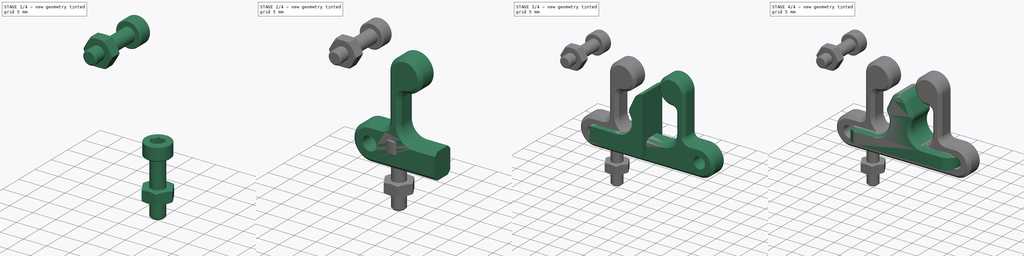
[diagram: build sequence overview — one tinted view per stage of 4, left to right]
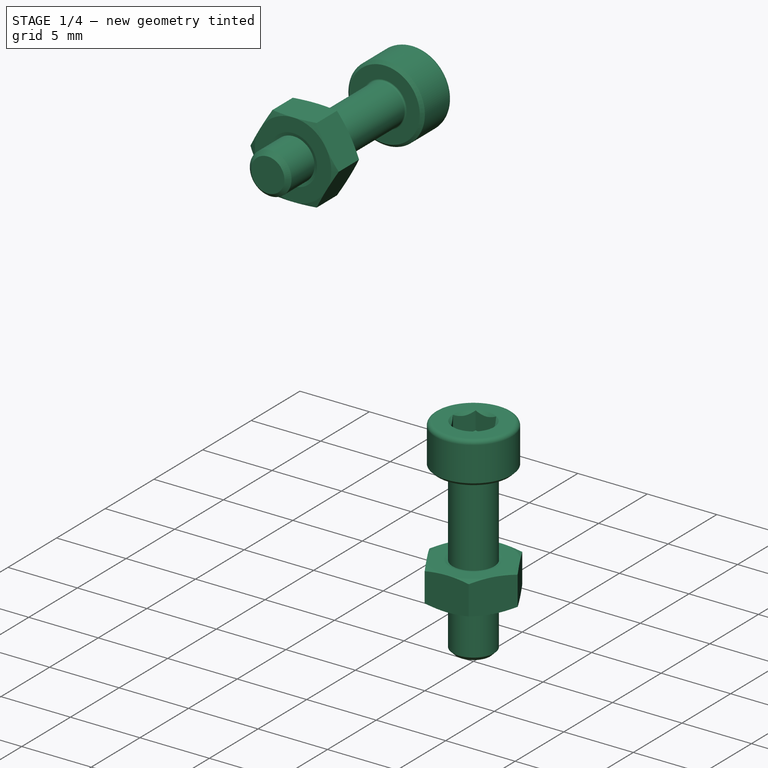
[diagram: stage 1 of 4 — iso view after this stage's code; geometry added in this stage tinted green]
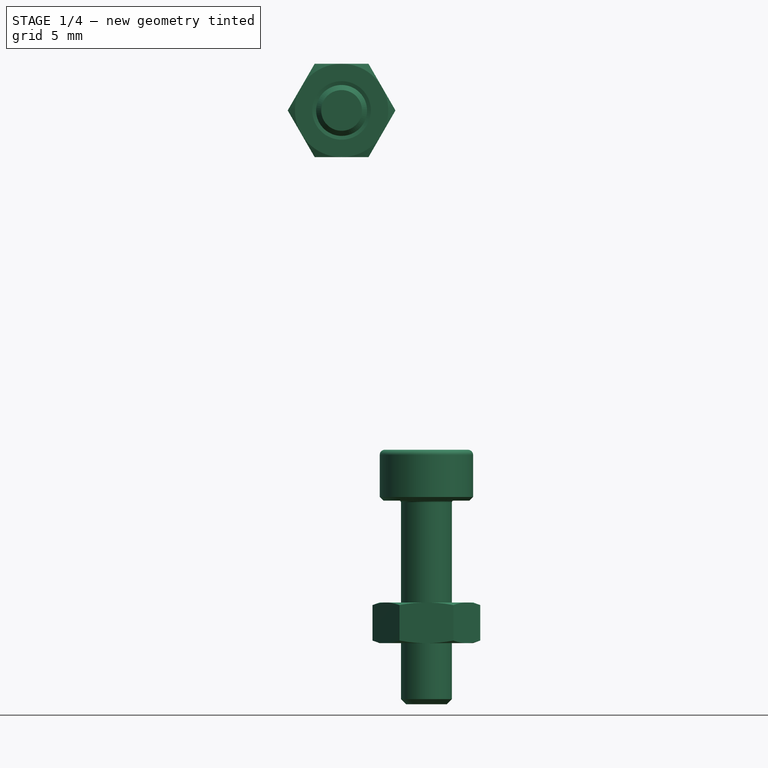
[diagram: stage 1 of 4 — front view after this stage's code; geometry added in this stage tinted green]
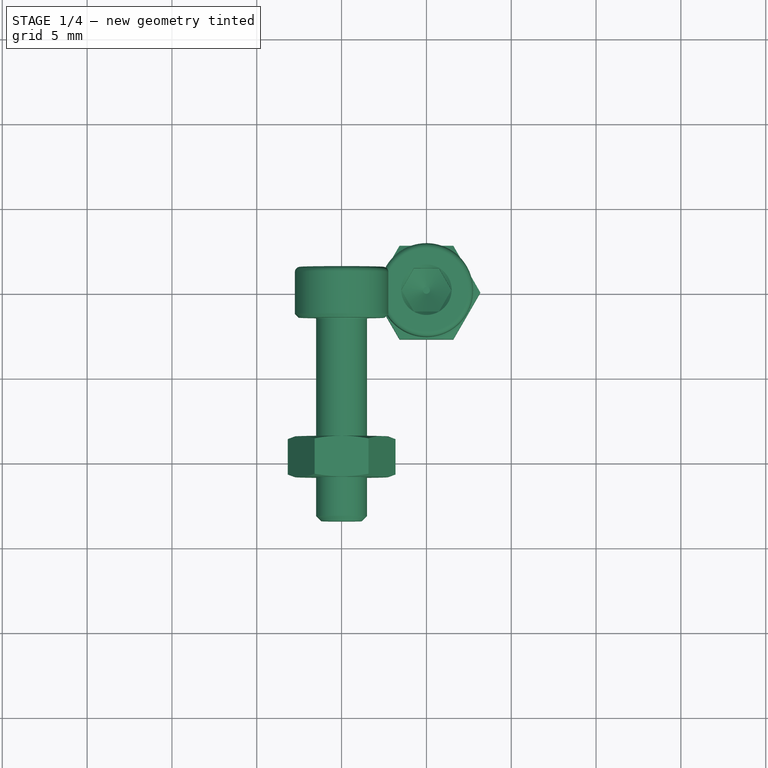
[diagram: stage 1 of 4 — top view after this stage's code; geometry added in this stage tinted green]
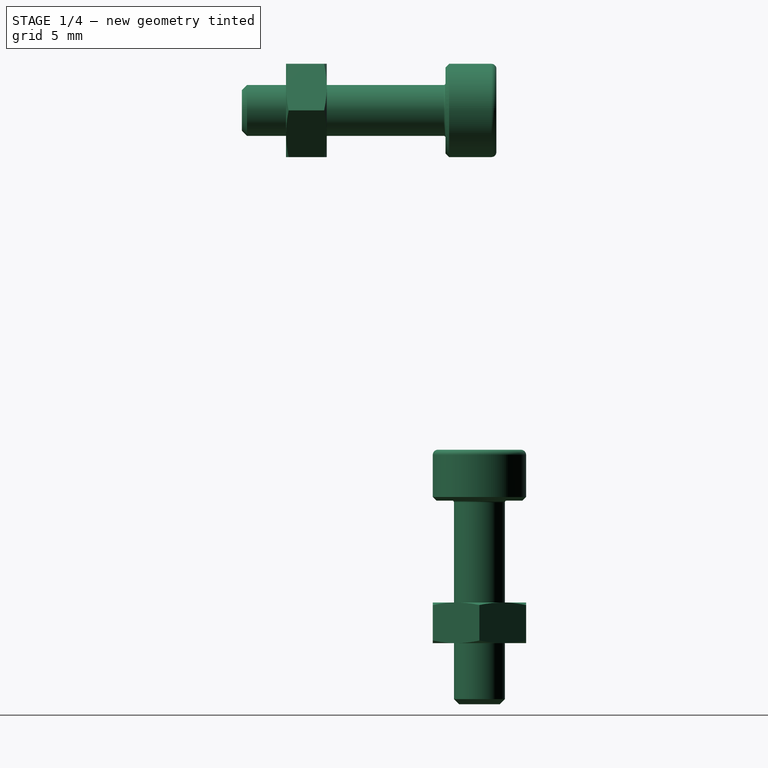
[diagram: stage 1 of 4 — right view after this stage's code; geometry added in this stage tinted green]
FCSTD DOCUMENT  (FreeCAD 0.20R29410 (Git))
Label: Latch
License: All rights reserved
LicenseURL: http://en.wikipedia.org/wiki/All_rights_reserved
objects: Sketcher::SketchObject×5, Part::FeaturePython×4, App::Link×4, PartDesign::Pocket×3, PartDesign::Pad×2, PartDesign::Chamfer×2, PartDesign::Mirrored×2, PartDesign::Body×2, PartDesign::Fillet×1, App::Part×1
note: 29 computed .brp shape members not serialized (recipe doc carries the construction recipe); baked Part::Feature solids carry a one-line shape summary decoded from their .brp

FEATURE [PartDesign::Body] Body001  label="Flex"
  Group = -> [Sketch001,Pad001,Sketch002,Pocket,Chamfer001,Mirrored001]
  Origin = -> Origin002
  Placement = pos=(0,-1.5,22) rot=(0,1,0;3.14159rad)
  Tip = -> Mirrored001
FEATURE [Part::FeaturePython] Screw  label="M3x12-Screw"  # Fasteners workbench fastener (typed FeaturePython)
  Placement = pos=(-10,0,-1) rot=(0,0,1;0rad)
  diameter = 4
  invert = true
  leftHanded = false
  length = 4
  lengthCustom = 12
  matchOuter = false
  offset = 0
  thread = false
  type = 42
FEATURE [App::Link] Link  label="M3x12-Screw001"
  LinkPlacement = pos=(10,0,-1) rot=(0,0,1;0rad)
  LinkedObject = -> Screw
  Placement = pos=(10,0,-1) rot=(0,0,1;0rad)
FEATURE [Part::FeaturePython] Screw001  label="M3x12-Screw002"  # Fasteners workbench fastener (typed FeaturePython)
  Placement = pos=(-15,-2,22) rot=(0,0.707107,0.707107;3.14159rad)
  diameter = 4
  invert = false
  leftHanded = false
  length = 4
  lengthCustom = 12
  matchOuter = false
  offset = 0
  thread = false
  type = 42
FEATURE [App::Link] Link001  label="M3x12-Screw003"
  LinkPlacement = pos=(15,-2,22) rot=(-1,0,0;1.5708rad)
  LinkedObject = -> Screw001
  Placement = pos=(15,-2,22) rot=(-1,0,0;1.5708rad)
FEATURE [Part::FeaturePython] Nut  label="M3-Nut"  # Fasteners workbench fastener (typed FeaturePython)
  Placement = pos=(-10,0,-7) rot=(0,1,0;3.14159rad)
  diameter = 4
  invert = false
  leftHanded = false
  matchOuter = false
  offset = 0
  thread = false
  type = 10
FEATURE [Part::FeaturePython] Nut001  label="M3-Nut004"  # Fasteners workbench fastener (typed FeaturePython)
  Placement = pos=(-15,-9,22) rot=(1,0,0;1.5708rad)
  diameter = 4
  invert = false
  leftHanded = false
  matchOuter = false
  offset = 0
  thread = false
  type = 10
FEATURE [App::Link] Link002  label="M3-Nut002"
  LinkPlacement = pos=(10,3.57628e-07,-7) rot=(0,1,0;3.14159rad)
  LinkedObject = -> Nut
  Placement = pos=(10,3.57628e-07,-7) rot=(0,1,0;3.14159rad)
FEATURE [App::Link] Link003  label="M3-Nut003"
  LinkPlacement = pos=(15,-9.00001,22) rot=(1,0,0;1.5708rad)
  LinkedObject = -> Nut001
  Placement = pos=(15,-9.00001,22) rot=(1,0,0;1.5708rad)
FEATURE [App::Part] Part  label="Latch"
  Group = -> [Body,Body001,Screw,Link,Screw001,Link001,Nut,Nut001,Link002,Link003]
  Origin = -> Origin
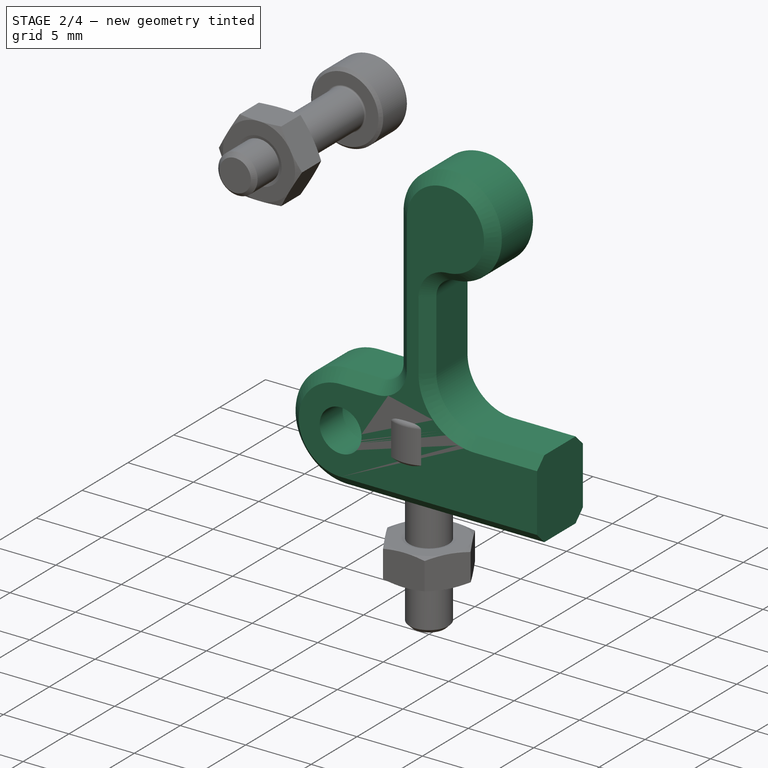
[diagram: stage 2 of 4 — iso view after this stage's code; geometry added in this stage tinted green]
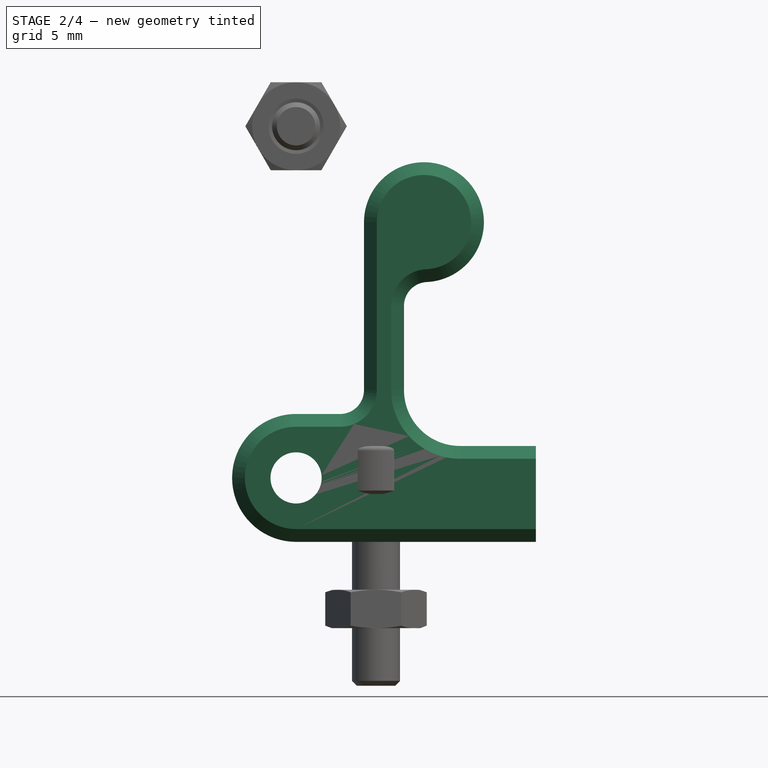
[diagram: stage 2 of 4 — front view after this stage's code; geometry added in this stage tinted green]
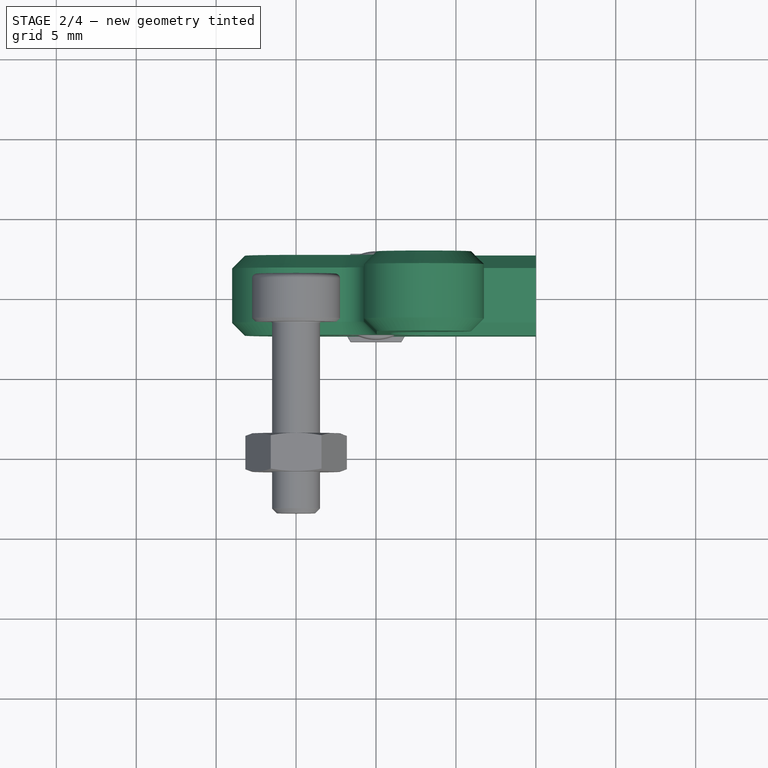
[diagram: stage 2 of 4 — top view after this stage's code; geometry added in this stage tinted green]
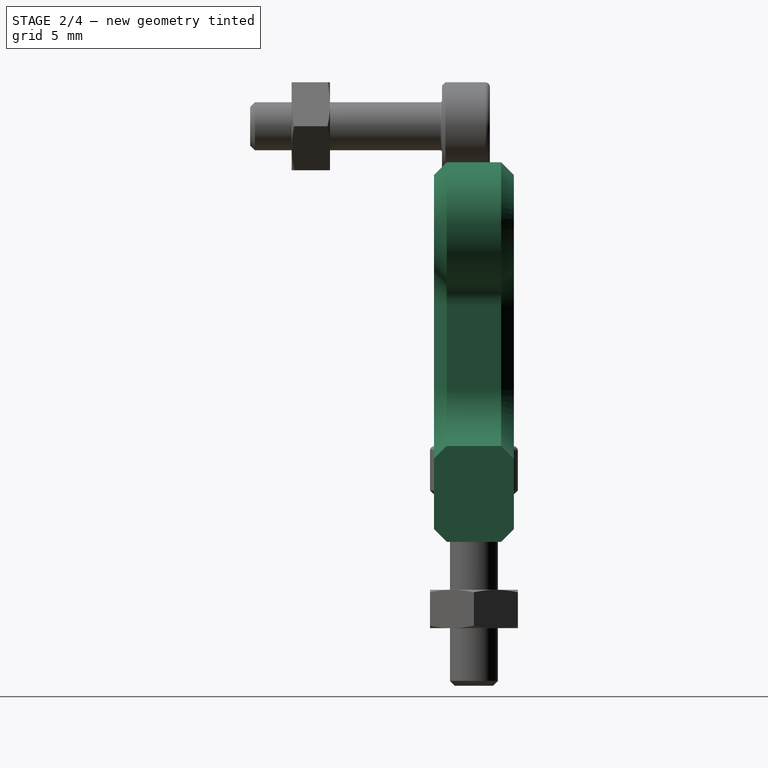
[diagram: stage 2 of 4 — right view after this stage's code; geometry added in this stage tinted green]
FEATURE [Sketcher::SketchObject] Sketch001
  FullyConstrained = true
  MapMode = 5
  Placement = pos=(0,0,0) rot=(1,0,0;1.5708rad)
  Support = -> [XZ_Plane002]
  sketch-geometry (12):
    g0: LineSegment StartX=-12.25 StartY=4 StartZ=0 EndX=-15 EndY=4 EndZ=0
    g1: LineSegment StartX=0 StartY=-4 StartZ=0 EndX=-15 EndY=-4 EndZ=0
    g2: ArcOfCircle CenterX=-15 CenterY=0 CenterZ=0 NormalX=0 NormalY=0 NormalZ=1 AngleXU=0 Radius=4 StartAngle=1.5708 EndAngle=4.71239
    g3: Circle CenterX=-15 CenterY=0 CenterZ=0 NormalX=0 NormalY=0 NormalZ=1 AngleXU=0 Radius=1.6
    g4: ArcOfCircle CenterX=-12.25 CenterY=5.5 CenterZ=0 NormalX=0 NormalY=0 NormalZ=1 AngleXU=0 Radius=1.5 StartAngle=4.71239 EndAngle=6.28319
    g5: ArcOfCircle CenterX=-7 CenterY=16 CenterZ=0 NormalX=0 NormalY=0 NormalZ=1 AngleXU=0 Radius=3.75 StartAngle=4.76003 EndAngle=9.42478
    g6: LineSegment StartX=-10.75 StartY=5.5 StartZ=0 EndX=-10.75 EndY=16 EndZ=0
    g7: LineSegment StartX=-8.25 StartY=10.756 StartZ=0 EndX=-8.25 EndY=5.5 EndZ=0
    g8: LineSegment StartX=0 StartY=2 StartZ=0 EndX=0 EndY=-4 EndZ=0
    g9: ArcOfCircle CenterX=-4.75 CenterY=5.5 CenterZ=0 NormalX=0 NormalY=0 NormalZ=1 AngleXU=0 Radius=3.5 StartAngle=3.14159 EndAngle=4.71239
    g10: LineSegment StartX=-4.75 StartY=2 StartZ=0 EndX=0 EndY=2 EndZ=0
    g11: ArcOfCircle CenterX=-6.75 CenterY=10.756 CenterZ=0 NormalX=0 NormalY=0 NormalZ=1 AngleXU=0 Radius=1.5 StartAngle=1.61843 EndAngle=3.14159
  constraints (31):
    c: Horizontal(g0)
    c: Horizontal(g1)
    c: PointOnObject(g2,g-1)
    c: Tangent(g2,g1) = 1.5708
    c: Tangent(g2,g0) = -1.5708
    c: PointOnObject(g1,g-2)
    c: Coincident(g3,g2)
    c: Diameter(g3) = 3.2
    c: Diameter(g2) = 8
    c: PointOnObject(g8,g-2)
    c: Coincident(g8,g1)
    c: Tangent(g6,g4) = -1.5708
    c: Tangent(g6,g5) = 1.5708
    c: Tangent(g4,g0) = 1.5708
    c: Coincident(g10,g8)
    c: Tangent(g10,g9) = -1.5708
    c: Horizontal(g7,g4)
    c: Vertical(g6)
    c: Diameter(g5) = 7.5
    c: Vertical(g7)
    c: Tangent(g9,g7) = -1.5708
    c: DistanceX(g2,g-1) = 15
    c: DistanceX(g4,g7) = 2.5
    c: Horizontal(g10)
    c: DistanceY(g8,g8) = 6
    c: DistanceX(g5,g8) = 7
    c: DistanceY(g8,g5) = 14
    c: Tangent(g11,g7) = -1.5708
    c: Tangent(g11,g5) = 1.5708
    c: Diameter(g11) = 3
    c: Diameter(g4) = 3
FEATURE [PartDesign::Pad] Pad001
  Direction = (0,-1,2e-16)
  Length = 5
  Length2 = 10
  Midplane = true
  Placement = pos=(0,0,0) rot=(1,0,0;1.5708rad)
  Profile = -> Sketch001
  ReferenceAxis = -> Sketch001 [N_Axis]
  Type = 0
FEATURE [Sketcher::SketchObject] Sketch002
  FullyConstrained = true
  MapMode = 5
  Placement = pos=(0,0,0) rot=(1,0,0;1.5708rad)
  Support = -> [XZ_Plane002]
  sketch-geometry (1):
    g0: Circle CenterX=-15 CenterY=0 CenterZ=0 NormalX=0 NormalY=0 NormalZ=1 AngleXU=0 Radius=2.5
  constraints (3):
    c: PointOnObject(g0,g-1)
    c: Diameter(g0) = 5
    c: DistanceX(g0,g-1) = 15
FEATURE [PartDesign::Pocket] Pocket
  BaseFeature = -> Pad001
  Direction = (0,1,-2e-16)
  Length = 5
  Length2 = 5
  Placement = pos=(0,0,0) rot=(1,0,0;1.5708rad)
  Profile = -> Sketch002
  ReferenceAxis = -> Sketch002 [N_Axis]
  Type = 0
FEATURE [PartDesign::Body] Body  label="Fix"
  Group = -> [Sketch,Pad,Sketch003,Pocket001,Sketch004,Pocket002,Fillet,Chamfer,Mirrored]
  Origin = -> Origin001
  Tip = -> Mirrored
FEATURE [PartDesign::Chamfer] Chamfer001
  Angle = 45
  Base = -> Pocket [Face8]
  BaseFeature = -> Pocket
  ChamferType = 0
  FlipDirection = false
  Placement = pos=(0,0,0) rot=(1,0,0;1.5708rad)
  Size = 0.8
  Size2 = 1
  SupportTransform = false
  UseAllEdges = false
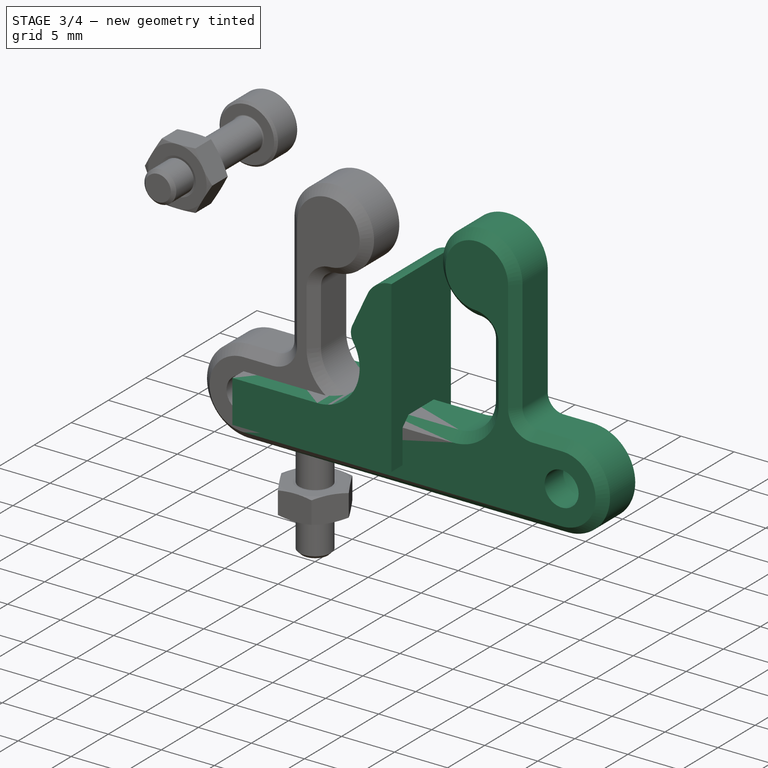
[diagram: stage 3 of 4 — iso view after this stage's code; geometry added in this stage tinted green]
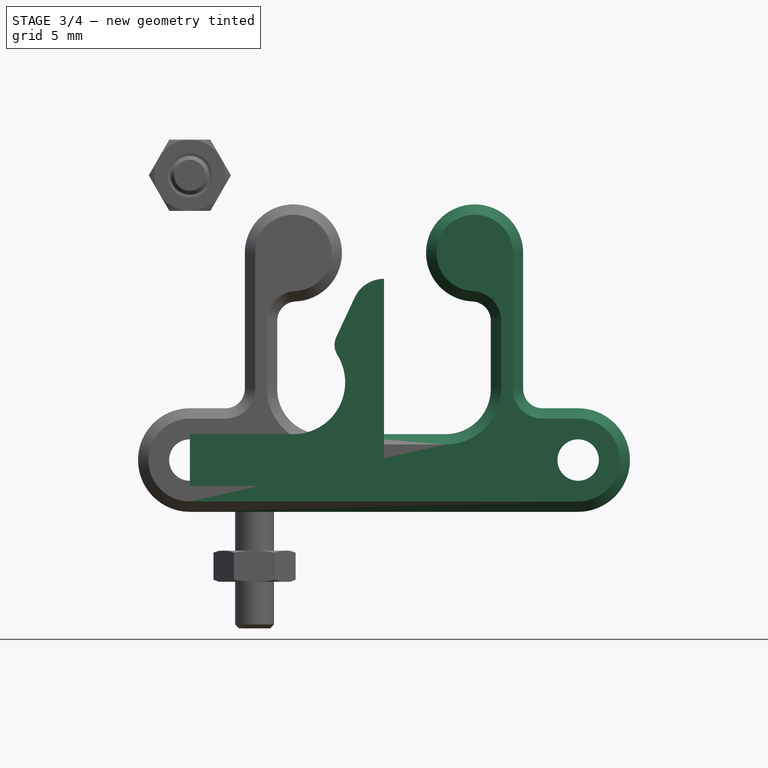
[diagram: stage 3 of 4 — front view after this stage's code; geometry added in this stage tinted green]
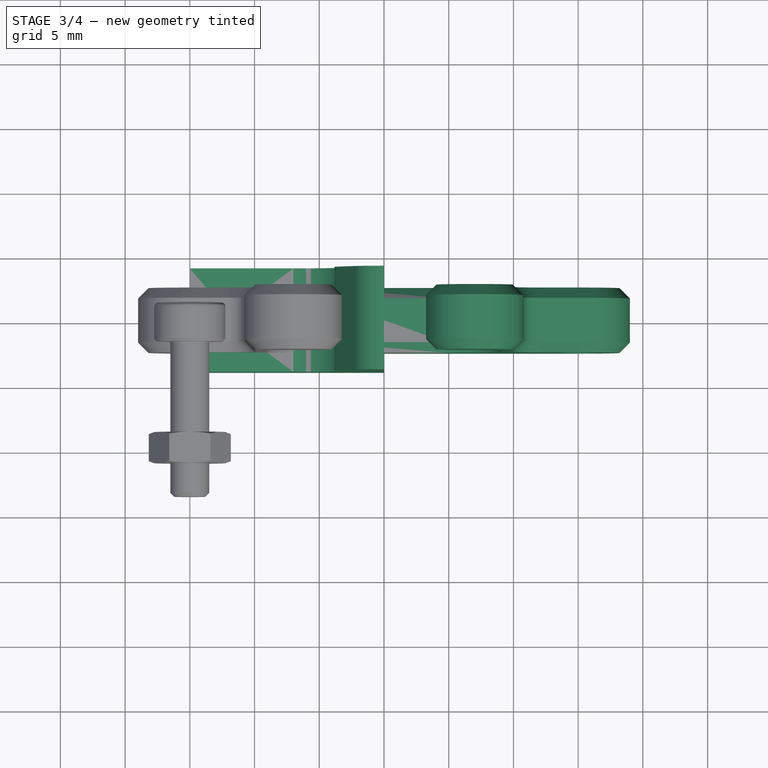
[diagram: stage 3 of 4 — top view after this stage's code; geometry added in this stage tinted green]
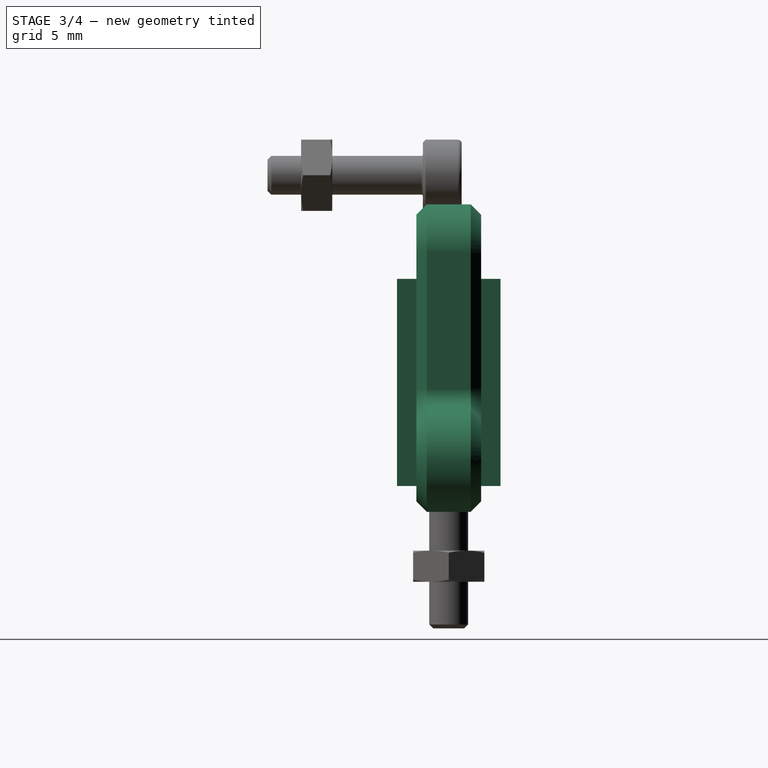
[diagram: stage 3 of 4 — right view after this stage's code; geometry added in this stage tinted green]
FEATURE [Sketcher::SketchObject] Sketch
  FullyConstrained = true
  MapMode = 5
  Placement = pos=(0,0,0) rot=(1,0,0;1.5708rad)
  Support = -> [XZ_Plane001]
  sketch-geometry (8):
    g0: ArcOfCircle CenterX=0 CenterY=11.5 CenterZ=0 NormalX=0 NormalY=0 NormalZ=1 AngleXU=0 Radius=2.5 StartAngle=1.5708 EndAngle=2.70526
    g1: LineSegment StartX=-2.26577 StartY=12.5565 StartZ=0 EndX=-3.67992 EndY=9.52389 EndZ=0
    g2: LineSegment StartX=-7 StartY=2 StartZ=0 EndX=-15 EndY=2 EndZ=0
    g3: LineSegment StartX=-15 StartY=-2 StartZ=0 EndX=0 EndY=-2 EndZ=0
    g4: LineSegment StartX=0 StartY=-2 StartZ=0 EndX=0 EndY=14 EndZ=0
    g5: ArcOfCircle CenterX=-7 CenterY=6 CenterZ=0 NormalX=0 NormalY=0 NormalZ=1 AngleXU=0 Radius=4 StartAngle=4.71239 EndAngle=6.83643
    g6: LineSegment StartX=-15 StartY=2 StartZ=0 EndX=-15 EndY=-2 EndZ=0
    g7: ArcOfCircle CenterX=-2.32046 CenterY=8.88996 CenterZ=0 NormalX=0 NormalY=0 NormalZ=1 AngleXU=0 Radius=1.5 StartAngle=2.70526 EndAngle=3.69483
  constraints (22):
    c: PointOnObject(g0,g-2)
    c: PointOnObject(g0,g-2)
    c: Tangent(g1,g0) = -1.5708
    c: Horizontal(g2)
    c: PointOnObject(g3,g-2)
    c: Horizontal(g3)
    c: Coincident(g4,g3)
    c: Coincident(g4,g0)
    c: DistanceY(g4,g4) = 16
    c: Diameter(g0) = 5
    c: Tangent(g5,g2) = 1.5708
    c: Angle(g1,g-2) = 0.436332
    c: Diameter(g5) = 8
    c: DistanceX(g2,g2) = 8
    c: Coincident(g3,g6)
    c: Coincident(g2,g6)
    c: DistanceY(g6,g6) = 4
    c: DistanceX(g3,g3) = 15
    c: Symmetric(g2,g3,g-1)
    c: Diameter(g7) = 3
    c: Tangent(g1,g7) = -1.5708
    c: Tangent(g5,g7) = 1.5708
FEATURE [PartDesign::Pad] Pad
  Direction = (0,-1,2e-16)
  Length = 8
  Length2 = 10
  Midplane = true
  Placement = pos=(0,0,0) rot=(1,0,0;1.5708rad)
  Profile = -> Sketch
  ReferenceAxis = -> Sketch [N_Axis]
  Type = 0
FEATURE [Sketcher::SketchObject] Sketch003
  FullyConstrained = true
  MapMode = 5
  Support = -> [XY_Plane001]
  sketch-geometry (1):
    g0: Circle CenterX=-10 CenterY=0 CenterZ=0 NormalX=0 NormalY=0 NormalZ=1 AngleXU=0 Radius=1.6
  constraints (3):
    c: PointOnObject(g0,g-1)
    c: DistanceX(g0,g-1) = 10
    c: Diameter(g0) = 3.2
FEATURE [PartDesign::Pocket] Pocket001
  BaseFeature = -> Pad
  Direction = (0,0,-1)
  Length = 5
  Length2 = 5
  Midplane = true
  Placement = pos=(0,0,0) rot=(1,0,0;1.5708rad)
  Profile = -> Sketch003
  ReferenceAxis = -> Sketch003 [N_Axis]
  Type = 1
FEATURE [PartDesign::Mirrored] Mirrored001
  BaseFeature = -> Chamfer001
  MirrorPlane = -> Sketch001 [V_Axis]
  Originals = -> [Pad001,Pocket,Chamfer001]
  Placement = pos=(0,0,0) rot=(1,0,0;1.5708rad)
  Refine = true
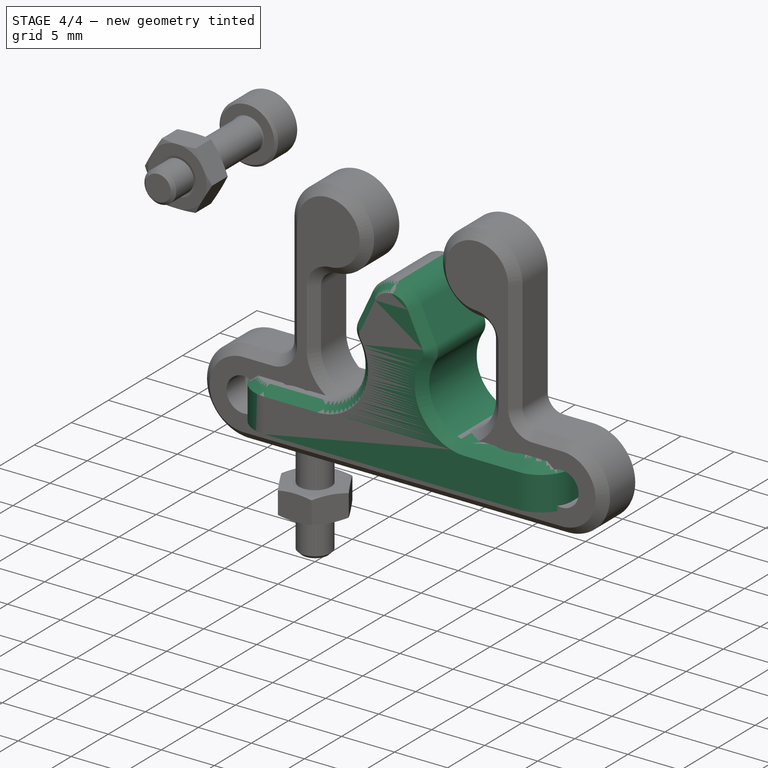
[diagram: stage 4 of 4 — iso view after this stage's code; geometry added in this stage tinted green]
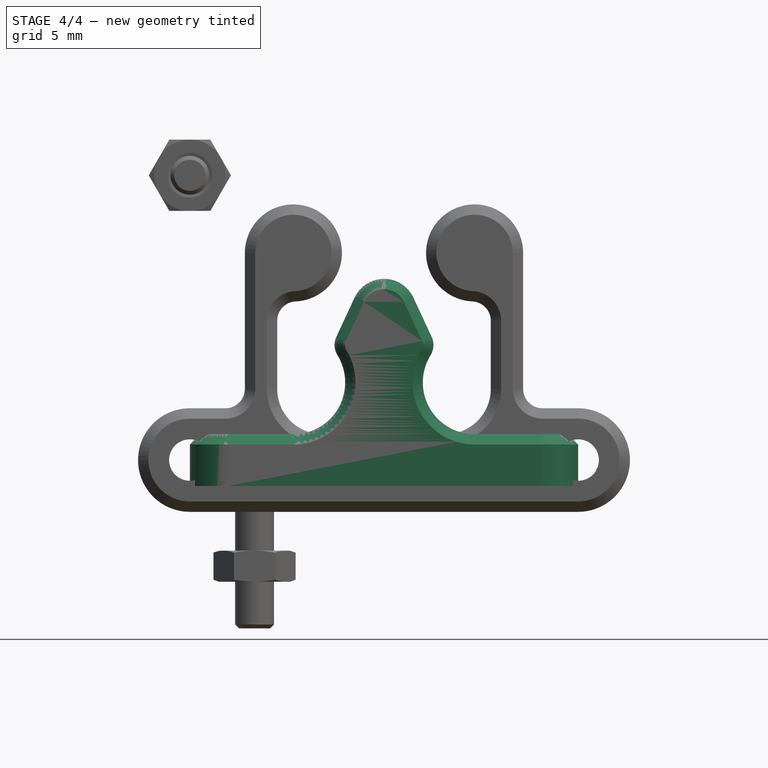
[diagram: stage 4 of 4 — front view after this stage's code; geometry added in this stage tinted green]
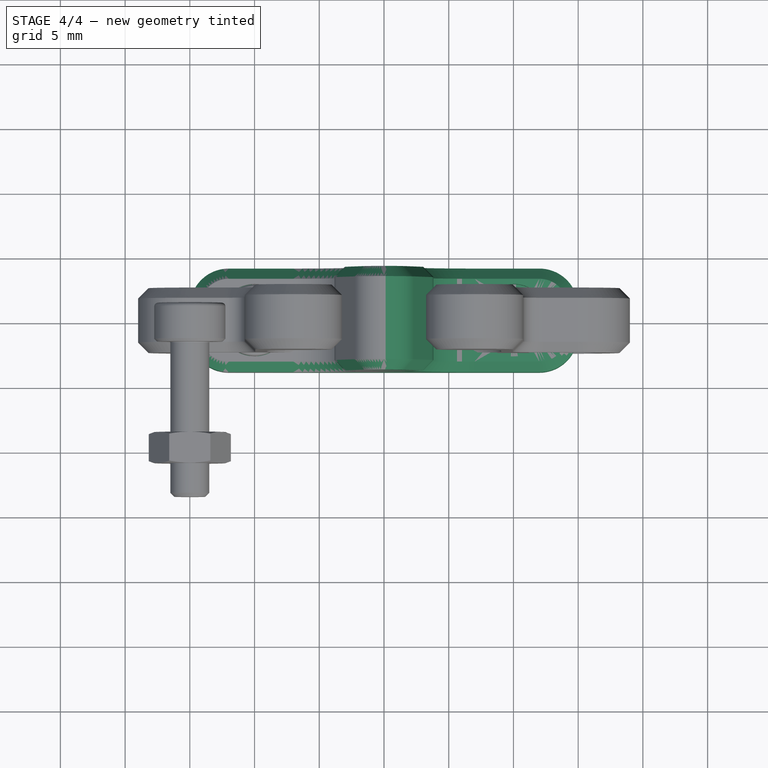
[diagram: stage 4 of 4 — top view after this stage's code; geometry added in this stage tinted green]
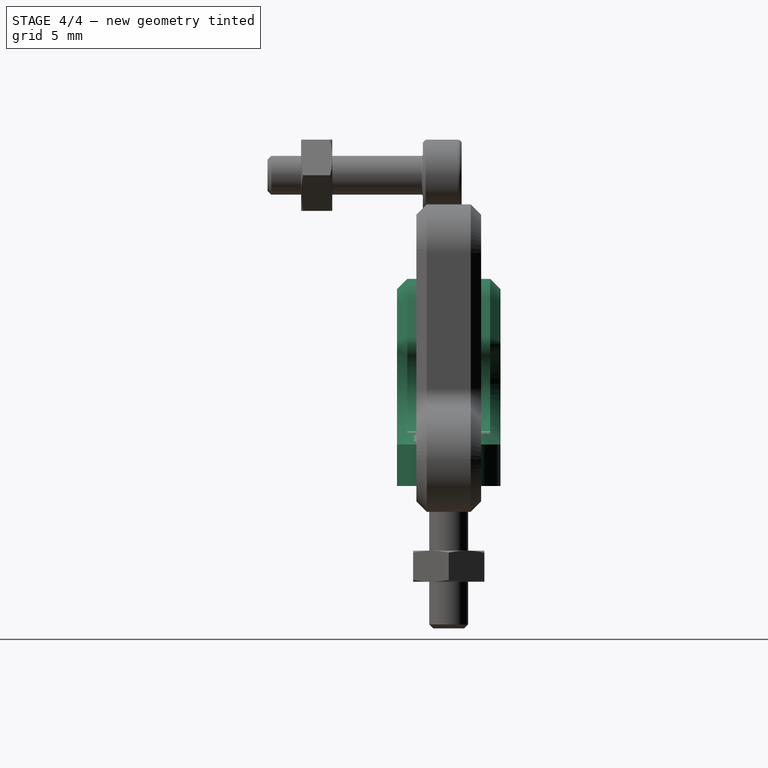
[diagram: stage 4 of 4 — right view after this stage's code; geometry added in this stage tinted green]
FEATURE [Sketcher::SketchObject] Sketch004
  FullyConstrained = true
  MapMode = 5
  Support = -> [XY_Plane001]
  sketch-geometry (1):
    g0: Circle CenterX=-10 CenterY=0 CenterZ=0 NormalX=0 NormalY=0 NormalZ=1 AngleXU=0 Radius=2.8
  constraints (3):
    c: PointOnObject(g0,g-1)
    c: Diameter(g0) = 5.6
    c: DistanceX(g0,g-1) = 10
FEATURE [PartDesign::Pocket] Pocket002
  BaseFeature = -> Pocket001
  Direction = (0,0,-1)
  Length = 5
  Length2 = 5
  Placement = pos=(0,0,0) rot=(1,0,0;1.5708rad)
  Profile = -> Sketch004
  ReferenceAxis = -> Sketch004 [N_Axis]
  Reversed = true
  Type = 1
FEATURE [PartDesign::Fillet] Fillet
  Base = -> Pocket002 [Edge15,Edge9]
  BaseFeature = -> Pocket002
  Placement = pos=(0,0,0) rot=(1,0,0;1.5708rad)
  Radius = 3
  SupportTransform = false
  UseAllEdges = false
FEATURE [PartDesign::Chamfer] Chamfer
  Angle = 45
  Base = -> Fillet [Edge2]
  BaseFeature = -> Fillet
  ChamferType = 0
  FlipDirection = false
  Placement = pos=(0,0,0) rot=(1,0,0;1.5708rad)
  Size = 0.8
  Size2 = 1
  SupportTransform = false
  UseAllEdges = false
FEATURE [PartDesign::Mirrored] Mirrored
  BaseFeature = -> Chamfer
  MirrorPlane = -> Sketch [V_Axis]
  Originals = -> [Pad,Pocket001,Pocket002,Fillet,Chamfer]
  Placement = pos=(0,0,0) rot=(1,0,0;1.5708rad)
  Refine = true
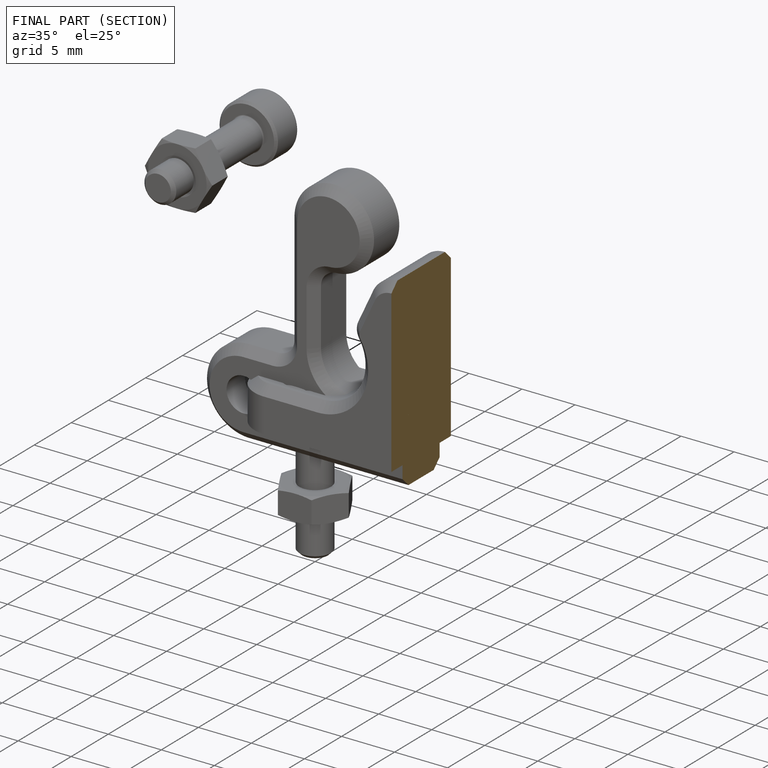
[diagram: finished part — half-section view (interior)]
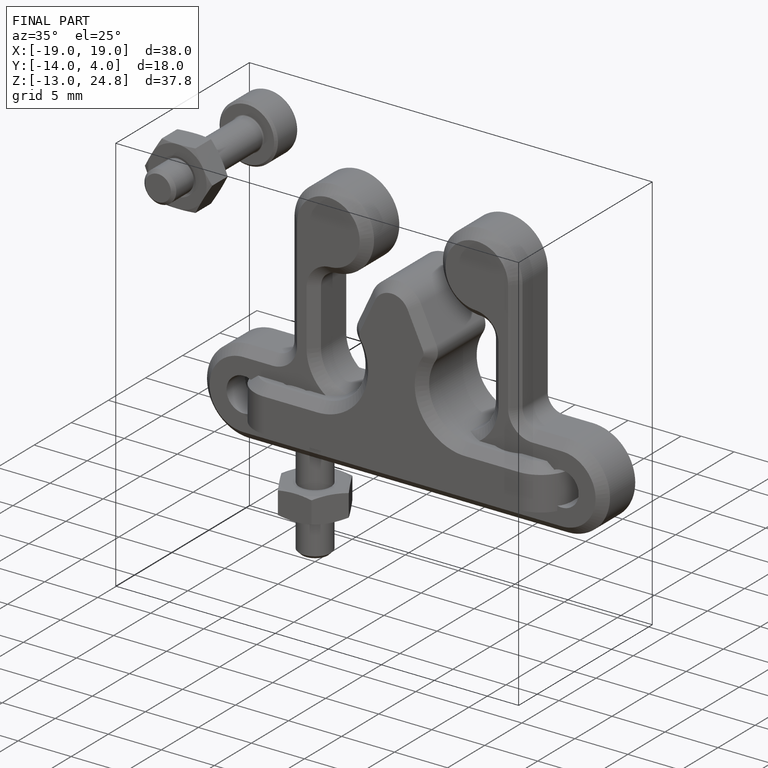
[diagram: finished part — iso view with bounding-box wireframe]
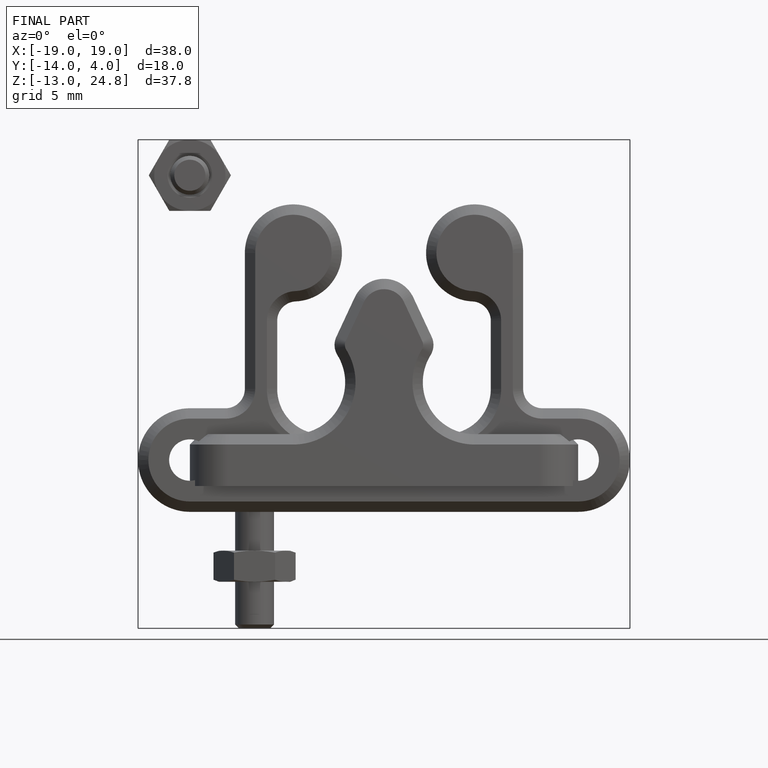
[diagram: finished part — front view with bounding-box wireframe]
